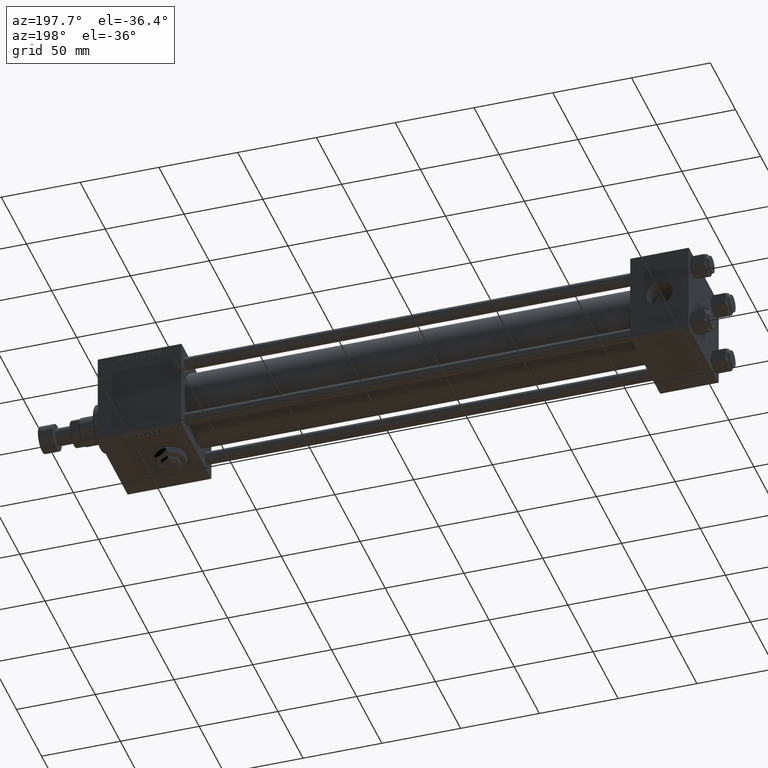
[diagram: clean part render]
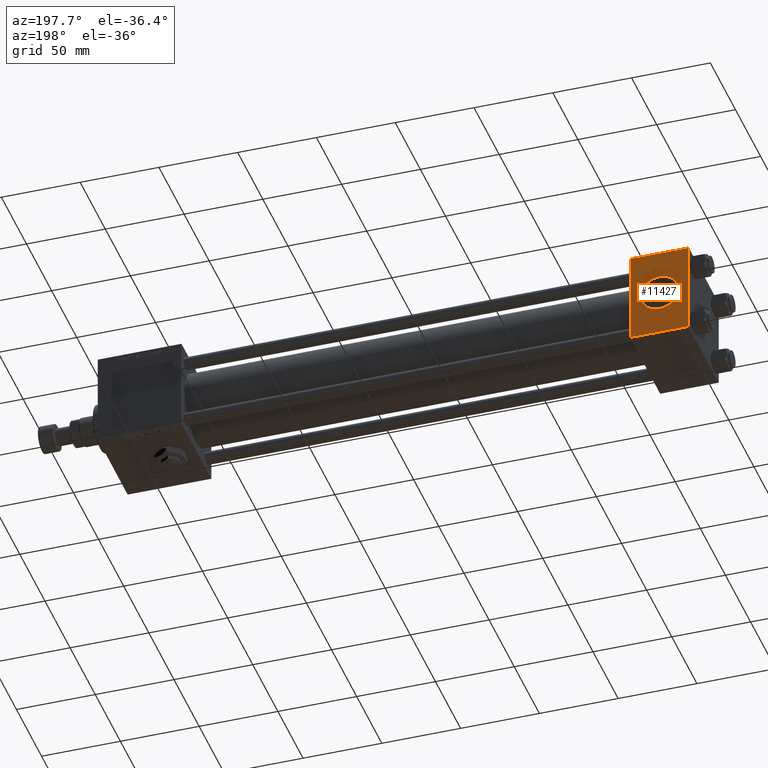
[diagram: same view with one face highlighted and labeled with its STEP entity id]
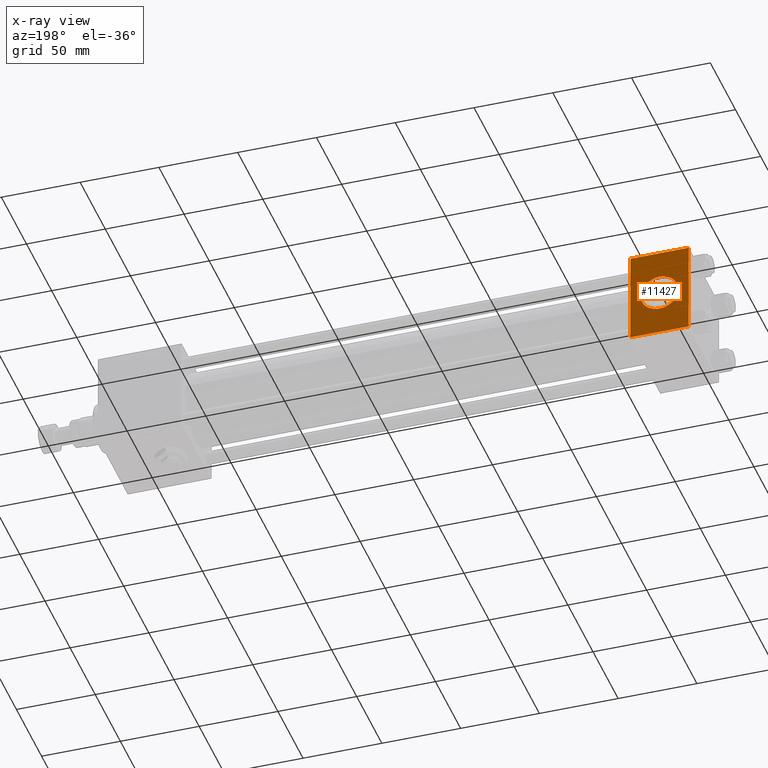
[diagram: x-ray of the same camera — body ghosted, the highlighted face saturated]
A machine part, auxiliary view. The second image highlights one B-rep face of the part: STEP entity #11427.
The next image is the same camera in x-ray: the body ghosted, the highlighted face saturated — about 0% of this face is hidden behind the body in this view.
In plain terms, the highlighted planar face has unit normal (0, 1, 0).
Its self-contained STEP definition (entity closure, byte-faithful):
#436 = CARTESIAN_POINT ( 'NONE',  ( 18.50000000000000000, 29.99999999999999289, -12.00000000000000178 ) ) ;
#872 = ORIENTED_EDGE ( 'NONE', *, *, #48333, .F. ) ;
#1455 = ORIENTED_EDGE ( 'NONE', *, *, #45302, .F. ) ;
#2442 = AXIS2_PLACEMENT_3D ( 'NONE', #48548, #12350, #12082 ) ;
#3594 = VERTEX_POINT ( 'NONE', #436 ) ;
#5252 = EDGE_CURVE ( 'NONE', #42609, #41437, #5974, .T. ) ;
#5836 = ORIENTED_EDGE ( 'NONE', *, *, #9192, .T. ) ;
#5974 = LINE ( 'NONE', #42712, #29021 ) ;
#6241 = DIRECTION ( 'NONE',  ( -1.000000000000000000, 0.000000000000000000, 0.000000000000000000 ) ) ;
#8414 = VECTOR ( 'NONE', #34667, 1000.000000000000000 ) ;
#8704 = LINE ( 'NONE', #20688, #10458 ) ;
#9188 = CARTESIAN_POINT ( 'NONE',  ( 18.50000000000000000, 29.99999999999999289, 12.00000000000000178 ) ) ;
#9192 = EDGE_CURVE ( 'NONE', #39384, #42609, #8704, .T. ) ;
#10458 = VECTOR ( 'NONE', #28938, 1000.000000000000000 ) ;
#11263 = CARTESIAN_POINT ( 'NONE',  ( 37.00000000000000000, 29.99999999999999289, 30.00000000000000000 ) ) ;
#11427 = ADVANCED_FACE ( 'NONE', ( #31504, #51713 ), #34993, .T. ) ;
#11525 = DIRECTION ( 'NONE',  ( -0.000000000000000000, 1.000000000000000000, 0.000000000000000000 ) ) ;
#11884 = DIRECTION ( 'NONE',  ( 0.000000000000000000, 0.000000000000000000, -1.000000000000000000 ) ) ;
#12082 = DIRECTION ( 'NONE',  ( 0.000000000000000000, 0.000000000000000000, 1.000000000000000000 ) ) ;
#12350 = DIRECTION ( 'NONE',  ( 0.000000000000000000, 1.000000000000000000, 0.000000000000000000 ) ) ;
#15165 = CIRCLE ( 'NONE', #2442, 12.00000000000000178 ) ;
#16868 = CARTESIAN_POINT ( 'NONE',  ( 37.00000000000000000, 29.99999999999999289, 29.50000000000000000 ) ) ;
#18663 = EDGE_CURVE ( 'NONE', #21839, #39384, #38660, .T. ) ;
#20688 = CARTESIAN_POINT ( 'NONE',  ( 37.00000000000000000, 29.99999999999999289, 30.00000000000000000 ) ) ;
#21038 = AXIS2_PLACEMENT_3D ( 'NONE', #47708, #36544, #47967 ) ;
#21839 = VERTEX_POINT ( 'NONE', #38316 ) ;
#28938 = DIRECTION ( 'NONE',  ( 0.000000000000000000, 0.000000000000000000, -1.000000000000000000 ) ) ;
#29021 = VECTOR ( 'NONE', #6241, 1000.000000000000000 ) ;
#29983 = VERTEX_POINT ( 'NONE', #9188 ) ;
#31504 = FACE_BOUND ( 'NONE', #38475, .T. ) ;
#32131 = CARTESIAN_POINT ( 'NONE',  ( 37.00000000000000000, 29.99999999999999289, -29.50000000000000000 ) ) ;
#32404 = LINE ( 'NONE', #48350, #48729 ) ;
#32746 = EDGE_CURVE ( 'NONE', #21839, #41437, #32404, .T. ) ;
#34150 = CARTESIAN_POINT ( 'NONE',  ( 37.00000000000000000, 29.99999999999999289, 29.50000000000000000 ) ) ;
#34667 = DIRECTION ( 'NONE',  ( 1.000000000000000000, 0.000000000000000000, 0.000000000000000000 ) ) ;
#34849 = ORIENTED_EDGE ( 'NONE', *, *, #18663, .T. ) ;
#34993 = PLANE ( 'NONE',  #45399 ) ;
#35622 = CARTESIAN_POINT ( 'NONE',  ( 0.000000000000000000, 29.99999999999999289, -29.50000000000000000 ) ) ;
#36544 = DIRECTION ( 'NONE',  ( 0.000000000000000000, 1.000000000000000000, 0.000000000000000000 ) ) ;
#38316 = CARTESIAN_POINT ( 'NONE',  ( 0.000000000000000000, 29.99999999999999289, 29.50000000000000000 ) ) ;
#38475 = EDGE_LOOP ( 'NONE', ( #872, #1455 ) ) ;
#38660 = LINE ( 'NONE', #34150, #8414 ) ;
#39323 = EDGE_LOOP ( 'NONE', ( #5836, #40218, #48969, #34849 ) ) ;
#39384 = VERTEX_POINT ( 'NONE', #16868 ) ;
#40218 = ORIENTED_EDGE ( 'NONE', *, *, #5252, .T. ) ;
#41437 = VERTEX_POINT ( 'NONE', #35622 ) ;
#42609 = VERTEX_POINT ( 'NONE', #32131 ) ;
#42712 = CARTESIAN_POINT ( 'NONE',  ( 37.00000000000000000, 29.99999999999999289, -29.50000000000000000 ) ) ;
#45302 = EDGE_CURVE ( 'NONE', #3594, #29983, #49900, .T. ) ;
#45399 = AXIS2_PLACEMENT_3D ( 'NONE', #11263, #11525, #51200 ) ;
#47708 = CARTESIAN_POINT ( 'NONE',  ( 18.50000000000000000, 29.99999999999999289, 0.000000000000000000 ) ) ;
#47967 = DIRECTION ( 'NONE',  ( 0.000000000000000000, 0.000000000000000000, 1.000000000000000000 ) ) ;
#48333 = EDGE_CURVE ( 'NONE', #29983, #3594, #15165, .T. ) ;
#48350 = CARTESIAN_POINT ( 'NONE',  ( 0.000000000000000000, 29.99999999999999289, 30.00000000000000000 ) ) ;
#48548 = CARTESIAN_POINT ( 'NONE',  ( 18.50000000000000000, 29.99999999999999289, 0.000000000000000000 ) ) ;
#48729 = VECTOR ( 'NONE', #11884, 1000.000000000000000 ) ;
#48969 = ORIENTED_EDGE ( 'NONE', *, *, #32746, .F. ) ;
#49900 = CIRCLE ( 'NONE', #21038, 12.00000000000000178 ) ;
#51200 = DIRECTION ( 'NONE',  ( 0.000000000000000000, -0.000000000000000000, 1.000000000000000000 ) ) ;
#51713 = FACE_OUTER_BOUND ( 'NONE', #39323, .T. ) ;